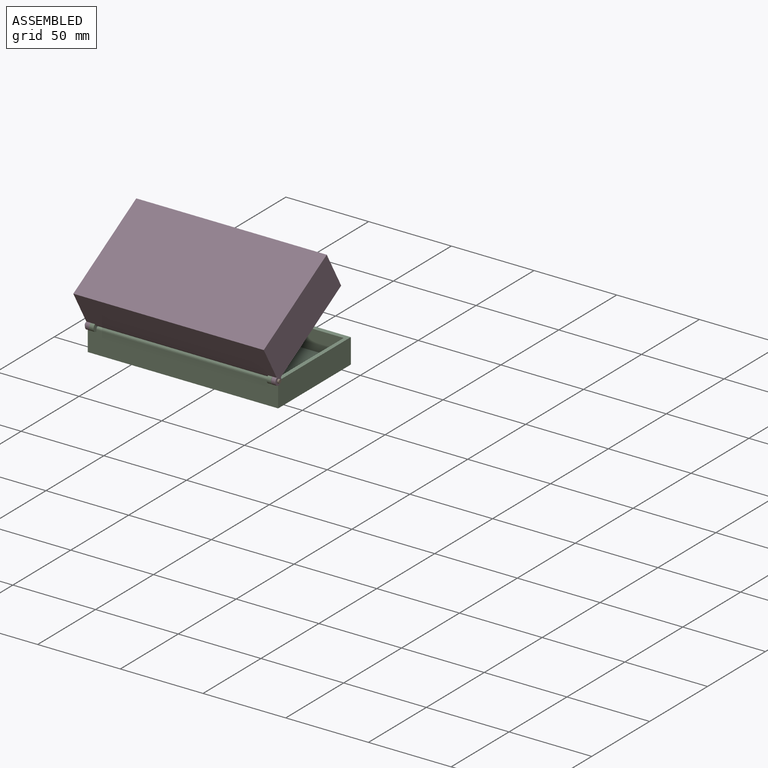
[diagram: assembled view]
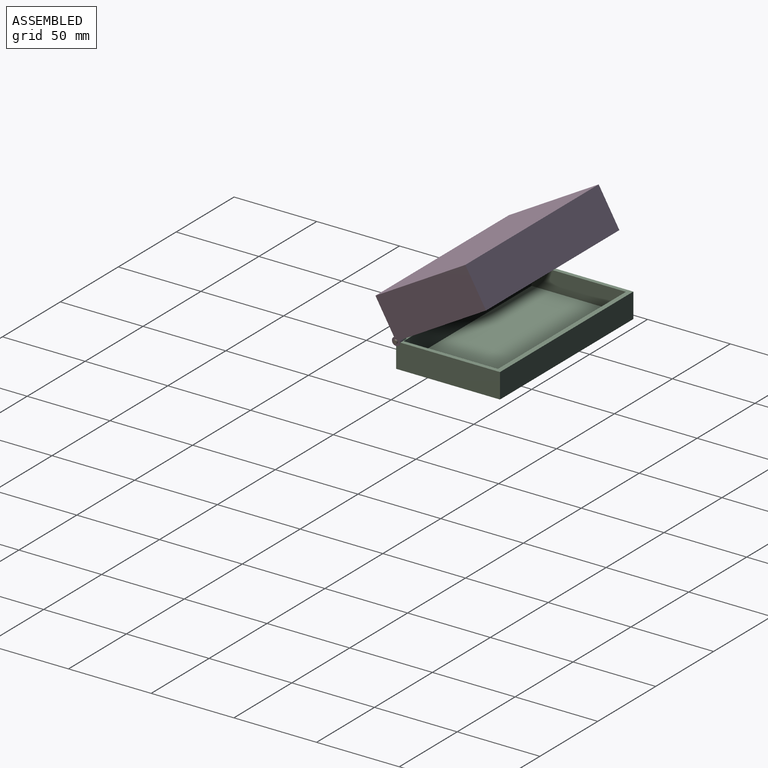
[diagram: assembled view, second angle]
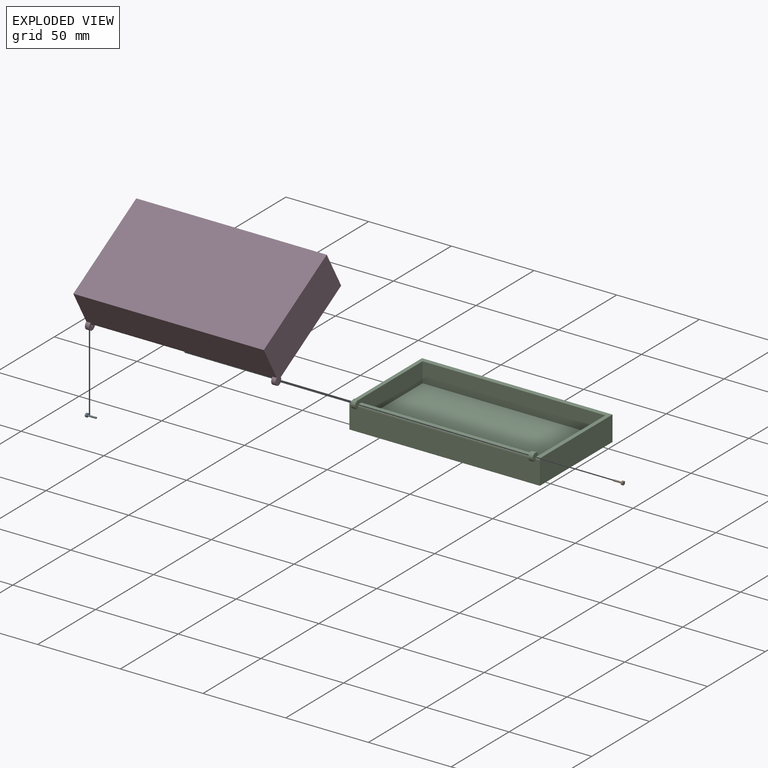
[diagram: exploded view]
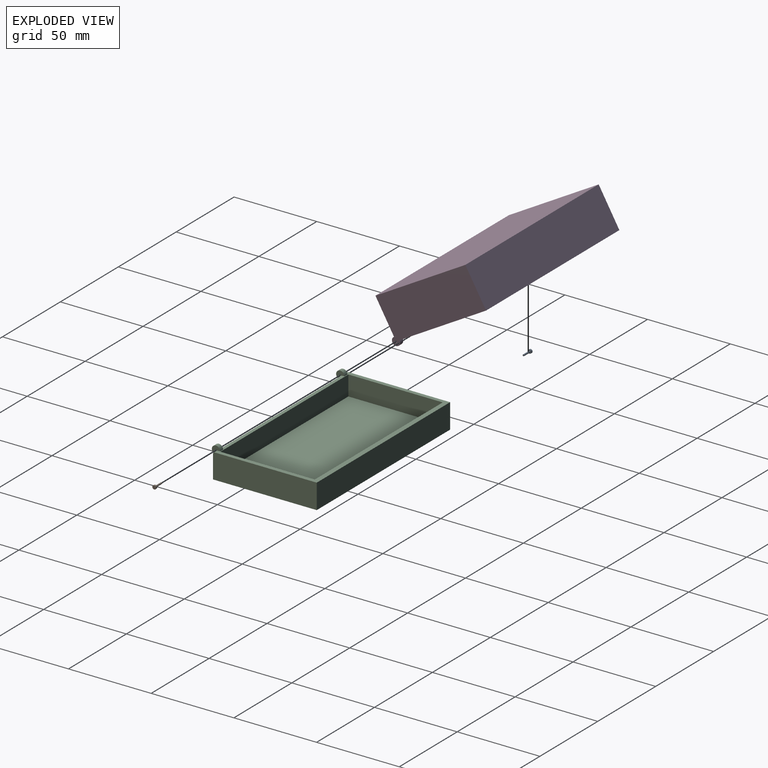
[diagram: exploded view, second angle]
ASSEMBLY  parts=4 mates=3
PART A: 5 faces, bbox 6.2x2.2x2.2 mm
  f0: cylinder r=1.12mm len=2.24mm, axis (-1,0,0), area 7.4mm2, adj f1,f4
  f1: plane 2.24x2.24mm, normal (-1,0,0), area 3.9mm2, adj f0
  f2: plane 1x1mm, normal (1,0,0), area 0.8mm2, adj f3
  f3: cylinder r=0.5mm len=5.2mm, axis (-1,0,0), area 16.3mm2, adj f2,f4
  f4: plane 2.24x2.24mm, normal (1,0,0), area 3.1mm2, adj f0,f3
PART B: same geometry as A
PART C: 20 faces, bbox 126.7x65.2x17.5 mm
  f0: plane 115.16x13.59mm, normal (0,1,0), area 1559.3mm2, adj f1,f3,f4,f11,f13,f14,f15,f16
  f1: plane 62.74x15mm, normal (-1,0,0), area 940.8mm2, adj f0,f2,f4,f9,f19
  f2: plane 115.16x15mm, normal (0,-1,0), area 1727.3mm2, adj f1,f3,f4,f9
  f3: plane 62.74x15mm, normal (1,0,0), area 940.8mm2, adj f0,f2,f4,f9,f19
  f4: plane 115.16x62.74mm, normal (0,0,-1), area 7225.1mm2, adj f0,f1,f2,f3
  f5: plane 57.06x12mm, normal (1,0,0), area 684.7mm2, adj f6,f8,f9,f10
  f6: plane 110.51x12mm, normal (0,-1,0), area 1326.1mm2, adj f5,f7,f9,f10
  f7: plane 57.06x12mm, normal (-1,0,0), area 684.7mm2, adj f6,f8,f9,f10
  f8: plane 110.51x12mm, normal (0,1,0), area 1326.1mm2, adj f5,f7,f9,f10
  f9: plane 115.16x61.33mm, normal (0,0,1), area 751.3mm2, adj f1,f2,f3,f5,f6,f7,f8,f11
  f10: plane 110.51x57.06mm, normal (0,0,1), area 6305.8mm2, adj f5,f6,f7,f8
  f11: plane 5x5mm, normal (-1,0,0), area 14.3mm2, adj f0,f9,f12,f14,f19
  f12: cylinder r=0.5mm len=2.6mm, axis (-1,0,0), area 8mm2, adj f11,f13,f19
  f13: plane 5x5mm, normal (1,0,0), area 14.3mm2, adj f0,f9,f12,f14,f19
  f14: cylinder r=2.5mm len=5mm, axis (-1,0,0), area 30.6mm2, adj f0,f9,f11,f13
  f15: cylinder r=2.5mm len=5mm, axis (-1,0,0), area 30.6mm2, adj f0,f9,f16,f18
  f16: plane 5x5mm, normal (-1,0,0), area 14.3mm2, adj f0,f9,f15,f17,f19
  f17: cylinder r=0.5mm len=2.6mm, axis (-1,0,0), area 8mm2, adj f16,f18,f19
  f18: plane 5x5mm, normal (1,0,0), area 14.3mm2, adj f0,f9,f15,f17,f19
  f19: bspline ~126.67x1.41mm, area 252mm2, adj f0,f1,f3,f9,f11,f12,f13,f16
PART D: 19 faces, bbox 115.2x65.2x27.5 mm
  f0: plane 115.16x23mm, normal (0,1,0), area 2646mm2, adj f2,f4,f5,f12,f13,f14,f17,f18
  f1: plane 115.16x60.74mm, normal (0,0,1), area 686.4mm2, adj f2,f3,f4,f6,f7,f8,f9,f12
  f2: plane 65.24x27.5mm, normal (-1,0,0), area 1582.5mm2, adj f0,f1,f3,f5,f11,f13
  f3: plane 115.16x25mm, normal (0,-1,0), area 2878.9mm2, adj f1,f2,f4,f5
  f4: plane 62.74x25mm, normal (1,0,0), area 1563.6mm2, adj f0,f1,f3,f5,f17
  f5: plane 115.16x62.74mm, normal (0,0,-1), area 7225.1mm2, adj f0,f2,f3,f4
  f6: plane 57.06x22mm, normal (1,0,0), area 1255.4mm2, adj f1,f7,f9,f10
  f7: plane 110.51x22mm, normal (0,-1,0), area 2431.2mm2, adj f1,f6,f8,f10
  f8: plane 57.06x22mm, normal (-1,0,0), area 1255.4mm2, adj f1,f7,f9,f10
  f9: plane 110.51x22mm, normal (0,1,0), area 2431.2mm2, adj f1,f6,f8,f10
  f10: plane 110.51x57.06mm, normal (0,0,1), area 6305.8mm2, adj f6,f7,f8,f9
  f11: cylinder r=0.5mm len=2.6mm, axis (-1,0,0), area 8.2mm2, adj f2,f12
  f12: plane 5x5mm, normal (1,0,0), area 14.8mm2, adj f0,f1,f11,f13,f18
  f13: cylinder r=2.5mm len=5mm, axis (-1,0,0), area 30.6mm2, adj f0,f1,f2,f12
  f14: plane 5x5mm, normal (-1,0,0), area 14.8mm2, adj f0,f1,f15,f17,f18
  f15: cylinder r=0.5mm len=2.6mm, axis (-1,0,0), area 8.2mm2, adj f14,f16
  f16: plane 5x5mm, normal (1,0,0), area 18.8mm2, adj f15,f17
  f17: cylinder r=2.5mm len=5mm, axis (-1,0,0), area 30.8mm2, adj f0,f1,f4,f14,f16
  f18: cylinder r=2mm len=110mm, axis (1,0,0), area 345.6mm2, adj f0,f1,f12,f14
PLACE A rot(axis=(0.44,-0.9,-0.03),0deg) t=(-49.85,-71.75,60.82)mm
PLACE B rot(axis=(0,0.97,0.26),180deg) t=(6.3,-71.77,60.9)mm
PLACE C rot(axis=(0,0,1),180deg) t=(-53.41,-25.32,45.82)mm fixed
PLACE D rot(axis=(-1,0,0),150deg) t=(-21.8,-57.23,98.16)mm
MATE revolute D.f11 <-> A.f0  axis (-1,0,0) through (-79.38,-71.9,60.82)mm
MATE fastened B.f0 <-> D.f11  axis (1,0,0) through (35.82,-71.9,60.82)mm
MATE revolute C.f12 <-> A.f0  axis (1,0,0) through (-76.78,-71.9,60.82)mm
